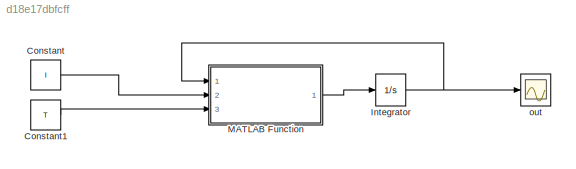
MODEL slx_d18e17dbfcff
KIND model
CONFIG AbsTol = auto
CONFIG EnableMultiTasking = off
CONFIG FixedStep = auto
CONFIG MaxStep = auto
CONFIG MinStep = auto
CONFIG RelTol = 1e-3
CONFIG SampleTimeConstraint = Unconstrained
CONFIG SolverName = VariableStepAuto
CONFIG StartTime = 0.0
CONFIG StopTime = 10.0
BLOCK [Constant] Constant
  Value = I
BLOCK [Constant] Constant1
  Value = T
BLOCK [Integrator] Integrator
  InitialCondition = X0
  Ports = [1, 1]
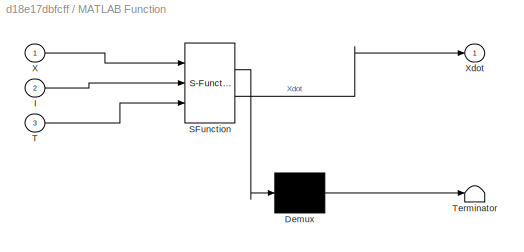
BLOCK [SubSystem] MATLAB Function
  ErrorFcn = Stateflow.Translate.translate
  PermitHierarchicalResolution = ExplicitOnly
  Ports = [3, 1]
  RequestExecContextInheritance = off
  SFBlockType = MATLAB Function
  TreatAsAtomicUnit = on
BLOCK [Demux] MATLAB Function/ Demux 
  Outputs = 1
  Ports = [1, 1]
BLOCK [S-Function] MATLAB Function/ SFunction 
  EnableBusSupport = on
  FunctionName = sf_sfun
  PortCounts = [3 2]
  Ports = [3, 2]
  SFcnIsStateOwnerBlock = off
  SFunctionDeploymentMode = off
  Tag = Stateflow S-Function 2
BLOCK [Terminator] MATLAB Function/ Terminator 
BLOCK [Inport] MATLAB Function/I
  Port = 2
BLOCK [Inport] MATLAB Function/T
  Port = 3
BLOCK [Inport] MATLAB Function/X
BLOCK [Outport] MATLAB Function/Xdot
  VectorParamsAs1DForOutWhenUnconnected = off
BLOCK [Scope] out
  Floating = off
  NumInputPorts = 1
  Ports = [1]
  ScopeSpecificationString = Simulink.scopes.TimeScopeBlockCfg('CurrentConfiguration', extmgr.ConfigurationSet(extmgr.Configuration('Core','General UI',true),extmgr.Configuration('Core','Source UI',true),extmgr.Configuration('Sources','WiredSimulink',true,'DataLogging',true),extmgr.Configuration('Visuals','Time Domain',true,'SerializedDisplays',{struct('MinYLimReal','-0.1364','MaxYLimReal','1.12627','YLabelReal','','MinYLimMa...<+1486ch>
LINE Constant1:1 -> MATLAB Function:3
LINE Constant:1 -> MATLAB Function:2
NET Integrator:1 -> MATLAB Function:1, out:1
LINE MATLAB Function:1 -> Integrator:1
note: NET lines group one-source signal fan-out (src -> all destinations, sorted); 1:1 wires keep LINE
CHART MATLAB Function states=1 transitions=1
  STATE_LABEL 'eML_blk_kernel()'
  STATE_LABEL 'SCRIPT:\nfunction Xdot = EOMCoast(X,I,T)\n% % global ImatGlo\n% % \n% % I = ImatGlo;\n% \n% I = load("<path>");\n% I = I.moi;\n% I = diag(I);\n% % I = [812.03958333333,0,0\n% % 0,545.372916666667,0\n% % 0,0,627.708333333333];\n\nw = X(1:3);\nE = X(4:6);\neps = X(7:9);\neta = X(10);\n% T = [0;0;0]; % torque\n\n\nCx = @(theta)...\n    [[1 0 0];...\n    [0 cos(theta) sin(theta)];...\n    [0 -sin(theta...<+749ch>'
CHART  states=0 transitions=0
note: 1 file-system path scrubbed to <path> (not preserved elsewhere — flat text is the only slx artifact)
